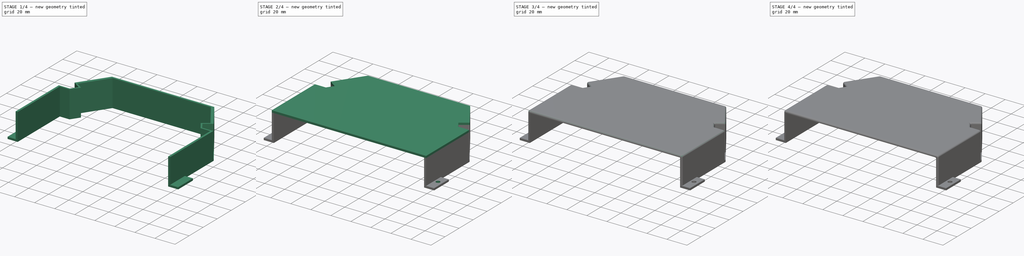
[diagram: build sequence overview — one tinted view per stage of 4, left to right]
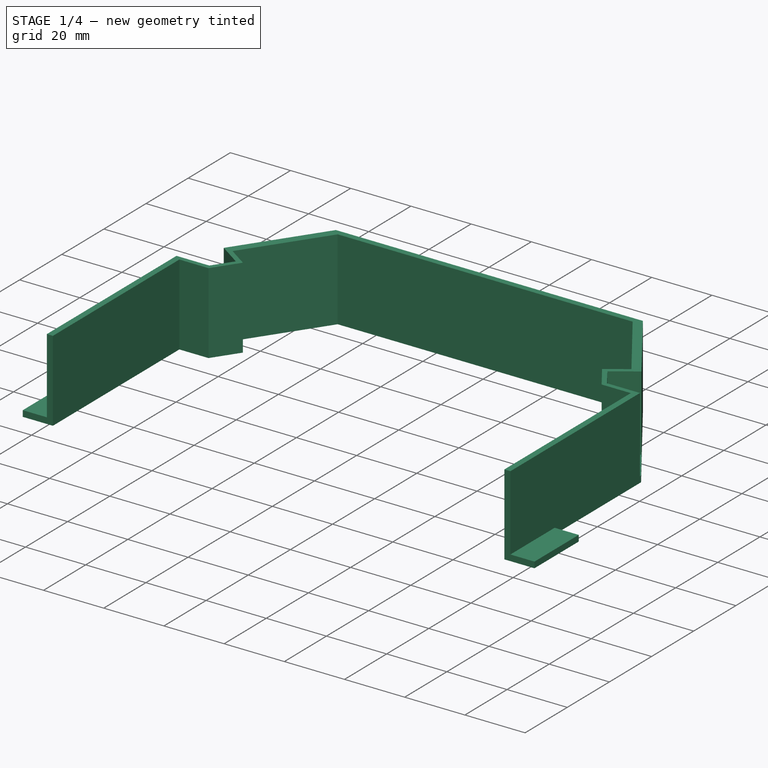
[diagram: stage 1 of 4 — iso view after this stage's code; geometry added in this stage tinted green]
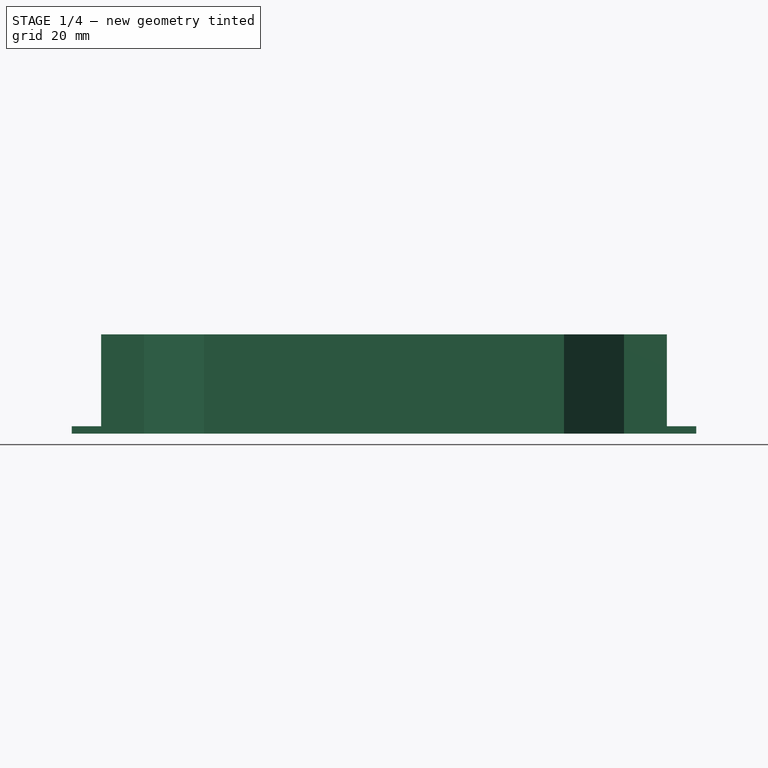
[diagram: stage 1 of 4 — front view after this stage's code; geometry added in this stage tinted green]
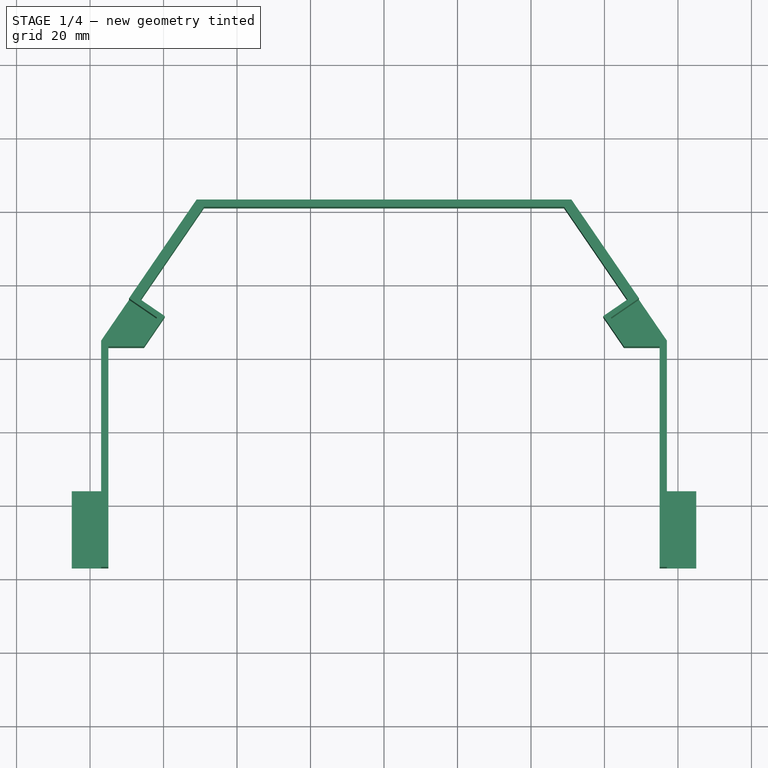
[diagram: stage 1 of 4 — top view after this stage's code; geometry added in this stage tinted green]
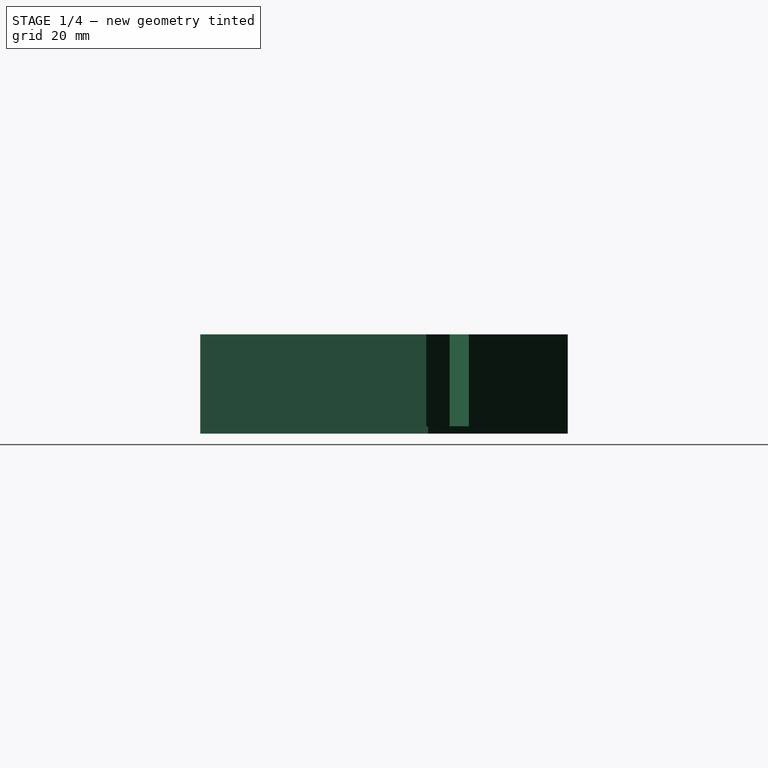
[diagram: stage 1 of 4 — right view after this stage's code; geometry added in this stage tinted green]
FCSTD DOCUMENT  (FreeCAD 0.20R28870 (Git))
Label: splash_protection_hb_driver
License: All rights reserved
LicenseURL: http://en.wikipedia.org/wiki/All_rights_reserved
objects: Sketcher::SketchObject×5, PartDesign::Fillet×4, PartDesign::Pad×3, Image::ImagePlane×1, PartDesign::Hole×1, PartDesign::Pocket×1, PartDesign::Body×1
note: 24 computed .brp shape members not serialized (recipe doc carries the construction recipe); baked Part::Feature solids carry a one-line shape summary decoded from their .brp

FEATURE [Image::ImagePlane] ImagePlane
  XSize = 275.437
  YSize = 136.14
FEATURE [Sketcher::SketchObject] Sketch
  FullyConstrained = true
  MapMode = 5
  Support = -> [XY_Plane]
  expr: Constraints[10] = 94 + 4
  expr: Constraints[31] = 146 + 4
  sketch-geometry (25):
    g0: LineSegment StartX=-85 StartY=-57 StartZ=0 EndX=-85 EndY=-36 EndZ=0
    g1: LineSegment StartX=-85 StartY=-36 StartZ=0 EndX=-77 EndY=-36 EndZ=0
    g2: LineSegment StartX=-66.2623 StartY=15.7705 StartZ=0 EndX=-49 EndY=41 EndZ=0
    g3: LineSegment StartX=-49 StartY=41 StartZ=0 EndX=49 EndY=41 EndZ=0
    g4: LineSegment StartX=49 StartY=41 StartZ=0 EndX=66.2623 EndY=15.7705 EndZ=0
    g5: LineSegment StartX=75 StartY=3 StartZ=0 EndX=75 EndY=-57 EndZ=0
    g6: LineSegment StartX=85 StartY=-36 StartZ=0 EndX=85 EndY=-57 EndZ=0
    g7: LineSegment StartX=85 StartY=-57 StartZ=0 EndX=-85 EndY=-57 EndZ=0
    g8: LineSegment StartX=85 StartY=-57 StartZ=0 EndX=75 EndY=-57 EndZ=0
    g9: LineSegment StartX=85 StartY=-36 StartZ=0 EndX=77 EndY=-36 EndZ=0
    g10: LineSegment StartX=77 StartY=-36 StartZ=0 EndX=77 EndY=5 EndZ=0
    g11: LineSegment StartX=77 StartY=5 StartZ=0 EndX=51 EndY=43 EndZ=0
    g12: LineSegment StartX=51 StartY=43 StartZ=0 EndX=-51 EndY=43 EndZ=0
    g13: LineSegment StartX=-51 StartY=43 StartZ=0 EndX=-77 EndY=5 EndZ=0
    g14: LineSegment StartX=-77 StartY=5 StartZ=0 EndX=-77 EndY=-36 EndZ=0
    g15: LineSegment StartX=-75 StartY=3 StartZ=0 EndX=-75 EndY=-57 EndZ=0
    g16: LineSegment StartX=-75 StartY=-57 StartZ=0 EndX=-85 EndY=-57 EndZ=0
    g17: LineSegment StartX=-77 StartY=-36 StartZ=0 EndX=77 EndY=-36 EndZ=0
    g18: LineSegment StartX=-75 StartY=3 StartZ=0 EndX=-65.3066 EndY=3 EndZ=0
    g19: LineSegment StartX=-65.3066 StartY=3 StartZ=0 EndX=-59.6598 EndY=11.2531 EndZ=0
    g20: LineSegment StartX=-59.6598 StartY=11.2531 StartZ=0 EndX=-66.2623 EndY=15.7705 EndZ=0
    g21: LineSegment StartX=66.2623 StartY=15.7705 StartZ=0 EndX=59.6598 EndY=11.2531 EndZ=0
    g22: LineSegment StartX=59.6598 StartY=11.2531 StartZ=0 EndX=65.3066 EndY=3 EndZ=0
    g23: LineSegment StartX=65.3066 StartY=3 StartZ=0 EndX=75 EndY=3 EndZ=0
    g24: LineSegment StartX=-65.3066 StartY=3 StartZ=0 EndX=65.3066 EndY=3 EndZ=0
  constraints (69):
    c: Vertical(g0)
    c: Coincident(g1,g0)
    c: Horizontal(g1)
    c: Coincident(g3,g2)
    c: Coincident(g4,g3)
    c: Vertical(g5)
    c: Vertical(g6)
    c: Coincident(g7,g6)
    c: Symmetric(g3,g2,g-2)
    c: Symmetric(g6,g0,g-2)
    c: Distance(g3,g7) = 98
    c: Coincident(g7,g0)
    c: Coincident(g8,g6)
    c: PointOnObject(g8,g7)
    c: Coincident(g5,g8)
    c: Coincident(g9,g6)
    c: Horizontal(g9)
    c: Coincident(g10,g9)
    c: Vertical(g10)
    c: Coincident(g11,g10)
    c: Coincident(g12,g11)
    c: Horizontal(g12)
    c: Coincident(g13,g12)
    c: Coincident(g14,g13)
    c: Vertical(g14)
    c: Coincident(g14,g1)
    c: Vertical(g15)
    c: Coincident(g16,g15)
    c: Coincident(g16,g0)
    c: Distance(g-1,g7) = 57
    c: DistanceY(g2,g12) = 2
    c: Distance(g5,g15) = 150
    c: Symmetric(g5,g15,g-2)
    c: Distance(g16) = 10
    c: Equal(g10,g14)
    c: Equal(g11,g13)
    c: Parallel(g11,g4)
    c: Distance(g6) = 21
    c: Coincident(g17,g1)
    c: Coincident(g17,g9)
    c: Horizontal(g17)
    c: Parallel(g13,g2)
    c: DistanceX(g3,g11) = 2
    c: Distance(g1,g15) = 2
    c: Distance(g9,g5) = 2
    c: Coincident(g18,g15)
    c: Coincident(g19,g18)
    c: Coincident(g20,g19)
    c: Coincident(g20,g2)
    c: Perpendicular(g2,g20)
    c: Distance(g20) = 8
    c: Parallel(g19,g13)
    c: Coincident(g21,g4)
    c: Coincident(g22,g21)
    c: Coincident(g23,g22)
    c: Horizontal(g23)
    c: Coincident(g5,g23)
    c: Parallel(g22,g11)
    c: Perpendicular(g4,g21)
    c: Distance(g21) = 8
    c: Distance(g22,g7) = 60
    c: Horizontal(g18)
    c: Coincident(g24,g18)
    c: Coincident(g24,g22)
    c: Horizontal(g24)
    c: DistanceY(g5,g10) = 2
    c: Distance(g22) = 10
    c: Distance(g19) = 10
    c: Distance(g12) = 102
FEATURE [PartDesign::Pad] Pad
  Direction = (0,0,1)
  Length = 2
  Length2 = 10
  Profile = -> Sketch
  ReferenceAxis = -> Sketch [N_Axis]
  Type = 0
FEATURE [Sketcher::SketchObject] Sketch001
  ExternalGeometry = -> [Pad]
  FullyConstrained = true
  MapMode = 5
  Placement = pos=(0,0,2) rot=(0,0,1;0rad)
  Support = -> [Pad]
  sketch-geometry (24):
    g0: LineSegment StartX=-77 StartY=4.5 StartZ=0 EndX=-77 EndY=-57 EndZ=0
    g1: LineSegment StartX=-77 StartY=-57 StartZ=0 EndX=-75 EndY=-57 EndZ=0
    g2: LineSegment StartX=-75 StartY=-57 StartZ=0 EndX=-75 EndY=3 EndZ=0
    g3: LineSegment StartX=-49 StartY=41 StartZ=0 EndX=49 EndY=41 EndZ=0
    g4: LineSegment StartX=75 StartY=3 StartZ=0 EndX=75 EndY=-57 EndZ=0
    g5: LineSegment StartX=75 StartY=-57 StartZ=0 EndX=77 EndY=-57 EndZ=0
    g6: LineSegment StartX=77 StartY=-57 StartZ=0 EndX=77 EndY=4.5 EndZ=0
    g7: LineSegment StartX=51 StartY=43 StartZ=0 EndX=-51 EndY=43 EndZ=0
    g8: LineSegment StartX=75 StartY=3 StartZ=0 EndX=65.3066 EndY=3 EndZ=0
    g9: LineSegment StartX=65.3066 StartY=3 StartZ=0 EndX=59.6598 EndY=11.2531 EndZ=0
    g10: LineSegment StartX=59.6598 StartY=11.2531 StartZ=0 EndX=66.2623 EndY=15.7705 EndZ=0
    g11: LineSegment StartX=66.2623 StartY=15.7705 StartZ=0 EndX=49 EndY=41 EndZ=0
    g12: LineSegment StartX=-66.2623 StartY=15.7705 StartZ=0 EndX=-49 EndY=41 EndZ=0
    g13: LineSegment StartX=-66.2623 StartY=15.7705 StartZ=0 EndX=-59.6598 EndY=11.2531 EndZ=0
    g14: LineSegment StartX=-59.6598 StartY=11.2531 StartZ=0 EndX=-65.3066 EndY=3 EndZ=0
    g15: LineSegment StartX=-65.3066 StartY=3 StartZ=0 EndX=-75 EndY=3 EndZ=0
    g16: LineSegment StartX=-77 StartY=4.5 StartZ=0 EndX=-66.0978 EndY=4.5 EndZ=0
    g17: LineSegment StartX=-66.0978 StartY=4.5 StartZ=0 EndX=-61.7448 EndY=10.8621 EndZ=0
    g18: LineSegment StartX=-61.7448 StartY=10.8621 StartZ=0 EndX=-69.4036 EndY=16.1024 EndZ=0
    g19: LineSegment StartX=77 StartY=4.5 StartZ=0 EndX=66.0978 EndY=4.5 EndZ=0
    g20: LineSegment StartX=66.0978 StartY=4.5 StartZ=0 EndX=61.7448 EndY=10.8621 EndZ=0
    g21: LineSegment StartX=61.7448 StartY=10.8621 StartZ=0 EndX=69.4036 EndY=16.1024 EndZ=0
    g22: LineSegment StartX=69.4036 StartY=16.1024 StartZ=0 EndX=51 EndY=43 EndZ=0
    g23: LineSegment StartX=-69.4036 StartY=16.1024 StartZ=0 EndX=-51 EndY=43 EndZ=0
  constraints (58):
    c: Vertical(g0)
    c: Coincident(g1,g0)
    c: Coincident(g1,g-3)
    c: Horizontal(g1)
    c: Coincident(g2,g1)
    c: Coincident(g2,g-3)
    c: Coincident(g3,g-9)
    c: Coincident(g4,g-4)
    c: Coincident(g5,g4)
    c: Horizontal(g5)
    c: Coincident(g6,g5)
    c: Vertical(g6)
    c: Coincident(g4,g-16)
    c: Coincident(g8,g4)
    c: Coincident(g8,g-16)
    c: Coincident(g9,g8)
    c: Coincident(g9,g-17)
    c: Coincident(g10,g-17)
    c: Coincident(g11,g10)
    c: Coincident(g11,g3)
    c: Coincident(g10,g9)
    c: PointOnObject(g-12,g0)
    c: Coincident(g12,g3)
    c: Coincident(g3,g-10)
    c: Coincident(g-14,g12)
    c: Coincident(g13,g12)
    c: Coincident(g13,g-14)
    c: Coincident(g14,g13)
    c: Coincident(g14,g-15)
    c: Coincident(g15,g14)
    c: Coincident(g15,g2)
    c: Coincident(g16,g0)
    c: Coincident(g17,g16)
    c: Coincident(g18,g17)
    c: Parallel(g16,g15)
    c: Parallel(g17,g14)
    c: Parallel(g18,g13)
    c: PointOnObject(g6,g-5)
    c: Coincident(g19,g6)
    c: Horizontal(g19)
    c: Coincident(g20,g19)
    c: PointOnObject(g21,g-6)
    c: Coincident(g22,g21)
    c: Coincident(g22,g7)
    c: Parallel(g21,g10)
    c: Parallel(g20,g9)
    c: PointOnObject(g18,g-11)
    c: Coincident(g7,g-11)
    c: Coincident(g7,g-7)
    c: Coincident(g23,g18)
    c: Coincident(g23,g7)
    c: Distance(g19,g8) = 1.5
    c: Distance(g20,g9) = 1.5
    c: Distance(g16,g14) = 1.5
    c: Distance(g2,g16) = 1.5
    c: Coincident(g21,g20)
    c: Distance(g20,g10) = 1.5
    c: Distance(g17,g13) = 1.5
FEATURE [PartDesign::Pad] Pad001
  BaseFeature = -> Pad
  Direction = (0,0,1)
  Length = 25
  Length2 = 10
  Profile = -> Sketch001
  ReferenceAxis = -> Sketch001 [N_Axis]
  Type = 0
  expr: Length = 34 - 9
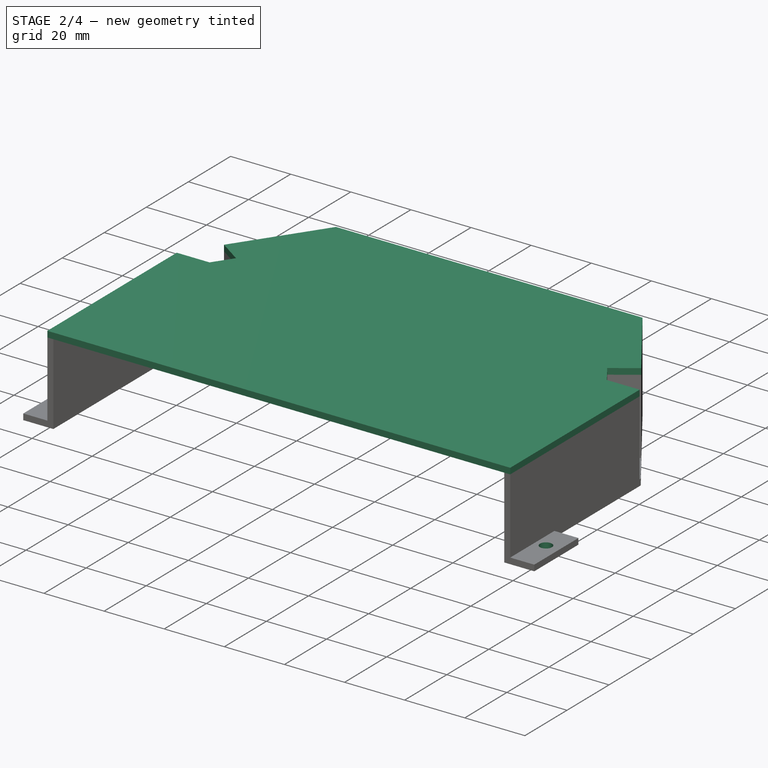
[diagram: stage 2 of 4 — iso view after this stage's code; geometry added in this stage tinted green]
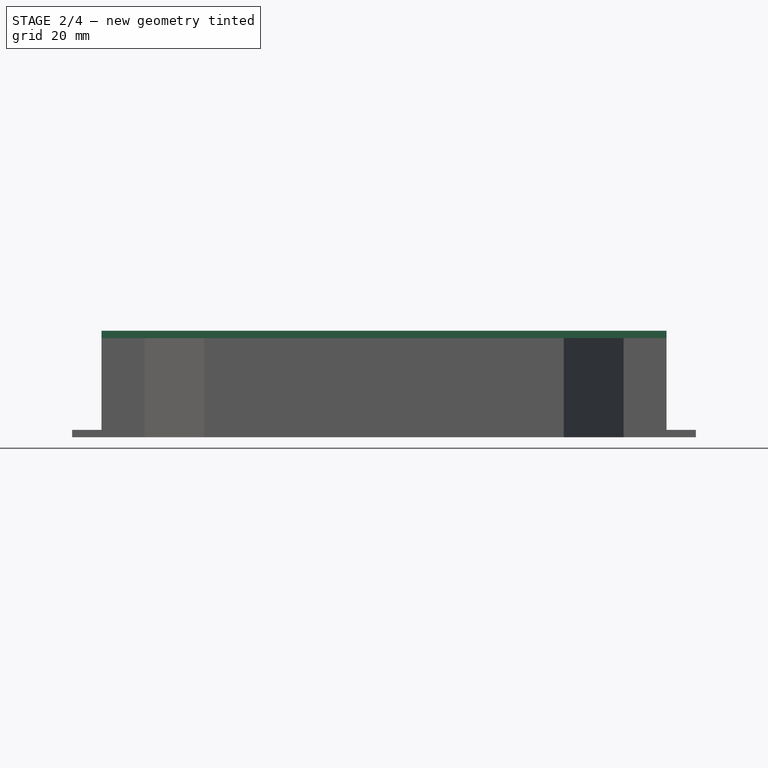
[diagram: stage 2 of 4 — front view after this stage's code; geometry added in this stage tinted green]
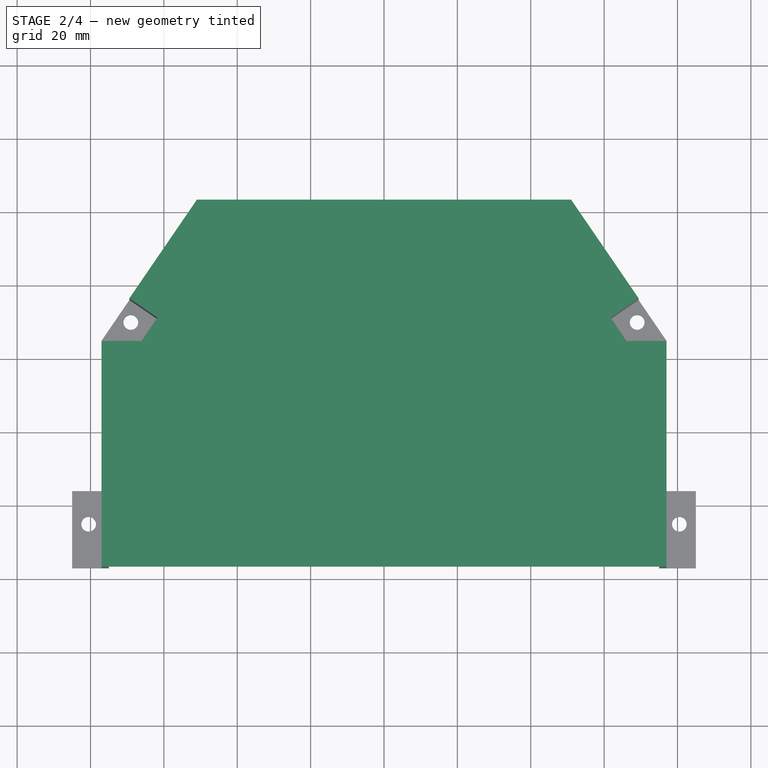
[diagram: stage 2 of 4 — top view after this stage's code; geometry added in this stage tinted green]
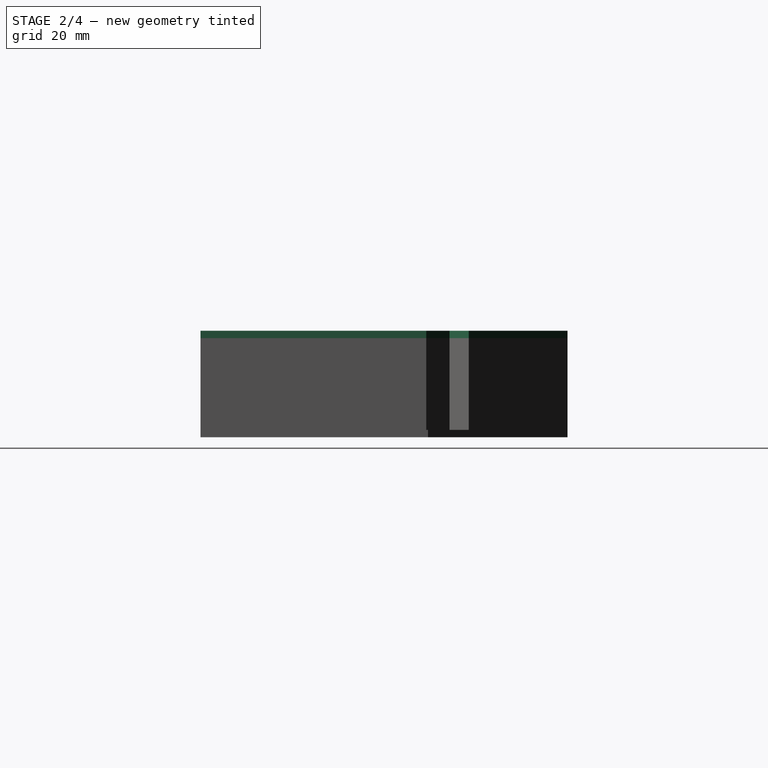
[diagram: stage 2 of 4 — right view after this stage's code; geometry added in this stage tinted green]
FEATURE [Sketcher::SketchObject] Sketch002
  ExternalGeometry = -> [Pad001]
  FullyConstrained = true
  MapMode = 5
  Placement = pos=(0,0,27) rot=(0,0,1;0rad)
  Support = -> [Pad001]
  sketch-geometry (12):
    g0: LineSegment StartX=-77 StartY=-57 StartZ=0 EndX=77 EndY=-57 EndZ=0
    g1: LineSegment StartX=77 StartY=-57 StartZ=0 EndX=77 EndY=4.5 EndZ=0
    g2: LineSegment StartX=77 StartY=4.5 StartZ=0 EndX=66.0978 EndY=4.5 EndZ=0
    g3: LineSegment StartX=66.0978 StartY=4.5 StartZ=0 EndX=61.7448 EndY=10.8621 EndZ=0
    g4: LineSegment StartX=61.7448 StartY=10.8621 StartZ=0 EndX=69.4036 EndY=16.1024 EndZ=0
    g5: LineSegment StartX=69.4036 StartY=16.1024 StartZ=0 EndX=51 EndY=43 EndZ=0
    g6: LineSegment StartX=51 StartY=43 StartZ=0 EndX=-51 EndY=43 EndZ=0
    g7: LineSegment StartX=-51 StartY=43 StartZ=0 EndX=-69.4036 EndY=16.1024 EndZ=0
    g8: LineSegment StartX=-69.4036 StartY=16.1024 StartZ=0 EndX=-61.7448 EndY=10.8621 EndZ=0
    g9: LineSegment StartX=-61.7448 StartY=10.8621 StartZ=0 EndX=-66.0978 EndY=4.5 EndZ=0
    g10: LineSegment StartX=-66.0978 StartY=4.5 StartZ=0 EndX=-77 EndY=4.5 EndZ=0
    g11: LineSegment StartX=-77 StartY=4.5 StartZ=0 EndX=-77 EndY=-57 EndZ=0
  constraints (24):
    c: Coincident(g0,g-7)
    c: Coincident(g0,g-8)
    c: Coincident(g1,g0)
    c: Coincident(g1,g-9)
    c: Coincident(g2,g1)
    c: Coincident(g2,g-10)
    c: Coincident(g3,g2)
    c: Coincident(g3,g-11)
    c: Coincident(g4,g3)
    c: Coincident(g4,g-12)
    c: Coincident(g5,g4)
    c: Coincident(g5,g-12)
    c: Coincident(g6,g5)
    c: Coincident(g6,g-3)
    c: Coincident(g7,g6)
    c: Coincident(g7,g-4)
    c: Coincident(g8,g7)
    c: Coincident(g8,g-5)
    c: Coincident(g9,g8)
    c: Coincident(g9,g-6)
    c: Coincident(g10,g9)
    c: Coincident(g10,g-7)
    c: Coincident(g11,g10)
    c: Coincident(g11,g0)
FEATURE [PartDesign::Pad] Pad002
  BaseFeature = -> Pad001
  Direction = (0,0,1)
  Length = 2
  Length2 = 10
  Profile = -> Sketch002
  ReferenceAxis = -> Sketch002 [N_Axis]
  Type = 0
FEATURE [Sketcher::SketchObject] Sketch003
  ExternalGeometry = -> [Pad002]
  FullyConstrained = true
  MapMode = 5
  Placement = pos=(0,0,2) rot=(0,0,1;0rad)
  Support = -> [Pad002]
  sketch-geometry (7):
    g0: LineSegment StartX=-77 StartY=-57 StartZ=0 EndX=77 EndY=-57 EndZ=0
    g1: Circle CenterX=69 CenterY=10 CenterZ=0 NormalX=0 NormalY=0 NormalZ=1 AngleXU=0 Radius=2
    g2: Circle CenterX=-69 CenterY=10 CenterZ=0 NormalX=0 NormalY=0 NormalZ=1 AngleXU=0 Radius=2
    g3: Circle CenterX=-80.5 CenterY=-45 CenterZ=0 NormalX=0 NormalY=0 NormalZ=1 AngleXU=0 Radius=2
    g4: Circle CenterX=80.5 CenterY=-45 CenterZ=0 NormalX=0 NormalY=0 NormalZ=1 AngleXU=0 Radius=2
    g5: LineSegment StartX=-80.5 StartY=-45 StartZ=0 EndX=80.5 EndY=-45 EndZ=0
    g6: LineSegment StartX=-69 StartY=10 StartZ=0 EndX=69 EndY=10 EndZ=0
  constraints (18):
    c: Coincident(g0,g-3)
    c: Coincident(g0,g-4)
    c: Equal(g4,g1)
    c: Equal(g1,g2)
    c: Equal(g2,g3)
    c: Diameter(g2) = 4
    c: Coincident(g5,g3)
    c: Coincident(g5,g4)
    c: Horizontal(g5)
    c: DistanceY(g-3,g3) = 12
    c: DistanceX(g3,g-5) = 5.5
    c: DistanceX(g-6,g4) = 5.5
    c: Coincident(g6,g2)
    c: Coincident(g6,g1)
    c: Horizontal(g6)
    c: Distance(g2,g0) = 67
    c: Distance(g2,g-5) = 6
    c: Distance(g1,g-6) = 6
FEATURE [PartDesign::Hole] Hole
  BaseFeature = -> Pad002
  CustomThreadClearance = 0
  Depth = 25
  DepthType = 0
  Diameter = 4
  DrillForDepth = false
  DrillPoint = 0
  DrillPointAngle = 118
  HoleCutCountersinkAngle = 90
  HoleCutCustomValues = false
  HoleCutDepth = 0
  HoleCutDiameter = 6.1
  HoleCutType = 0
  ModelThread = false
  Profile = -> Sketch003
  Tapered = false
  TaperedAngle = 90
  ThreadClass = 0
  ThreadDepth = 25
  ThreadDepthType = 0
  ThreadDirection = 0
  ThreadFit = 0
  ThreadSize = 0
  ThreadType = 0
  Threaded = false
  UseCustomThreadClearance = false
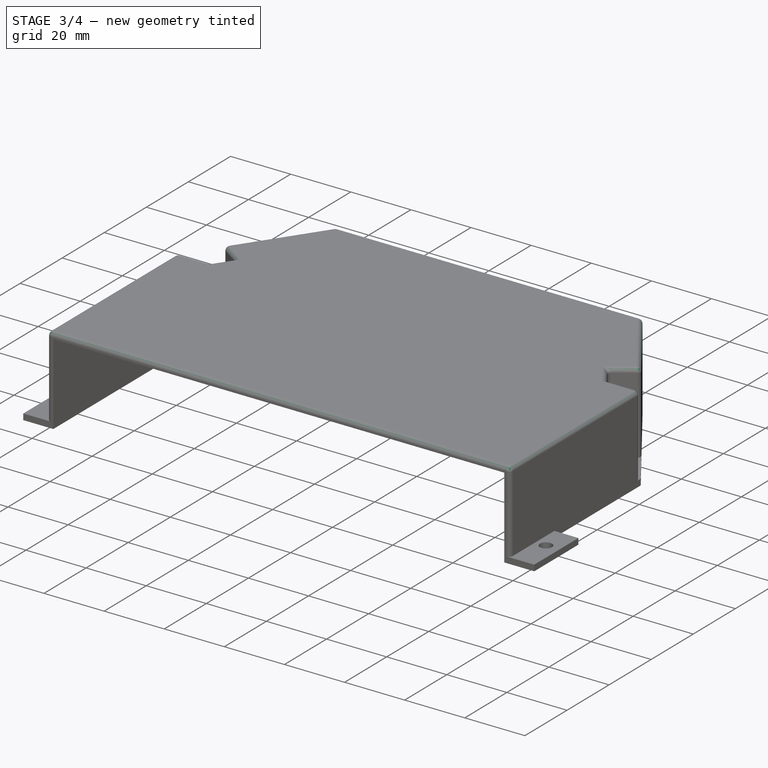
[diagram: stage 3 of 4 — iso view after this stage's code; geometry added in this stage tinted green]
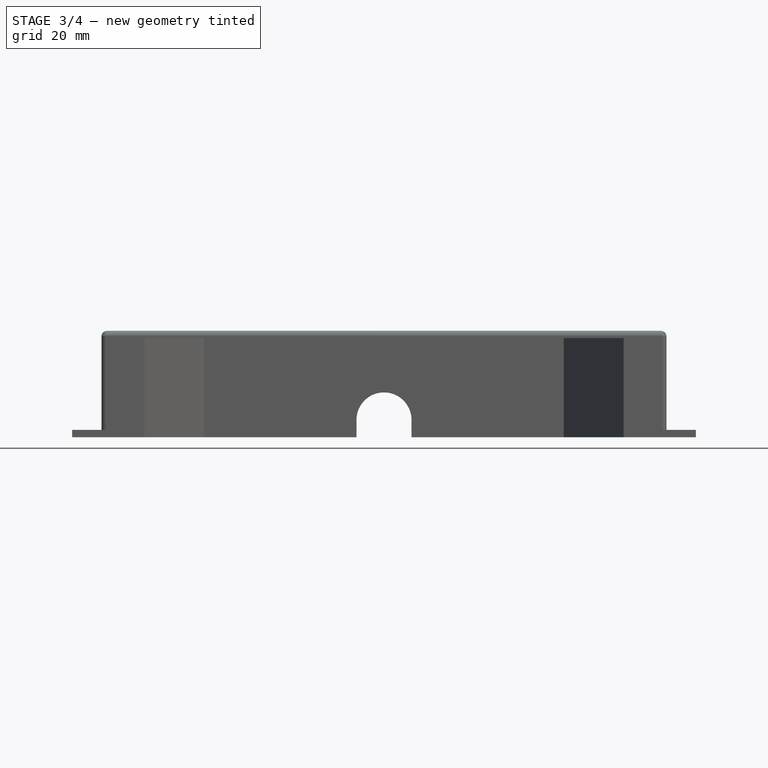
[diagram: stage 3 of 4 — front view after this stage's code; geometry added in this stage tinted green]
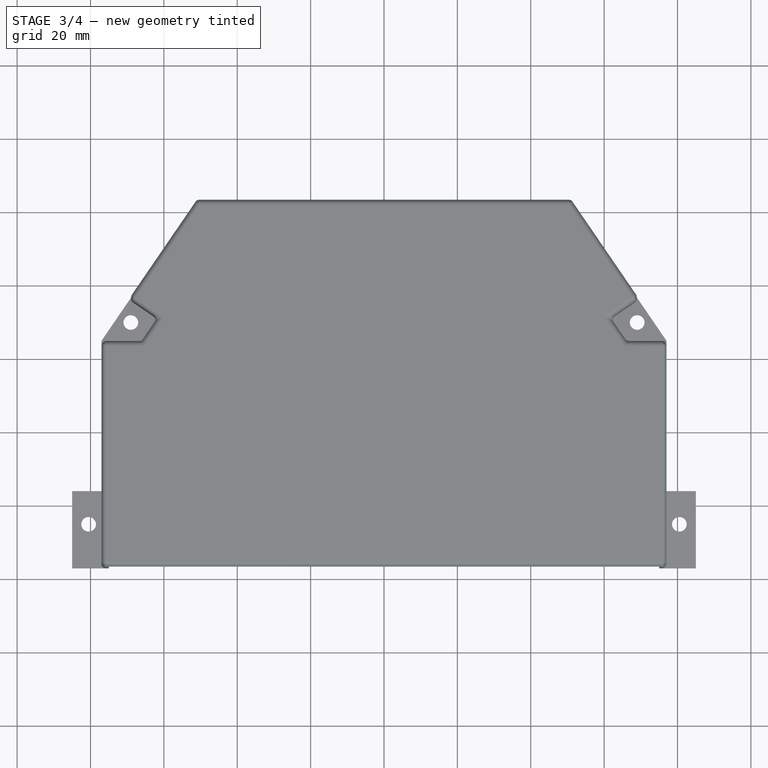
[diagram: stage 3 of 4 — top view after this stage's code; geometry added in this stage tinted green]
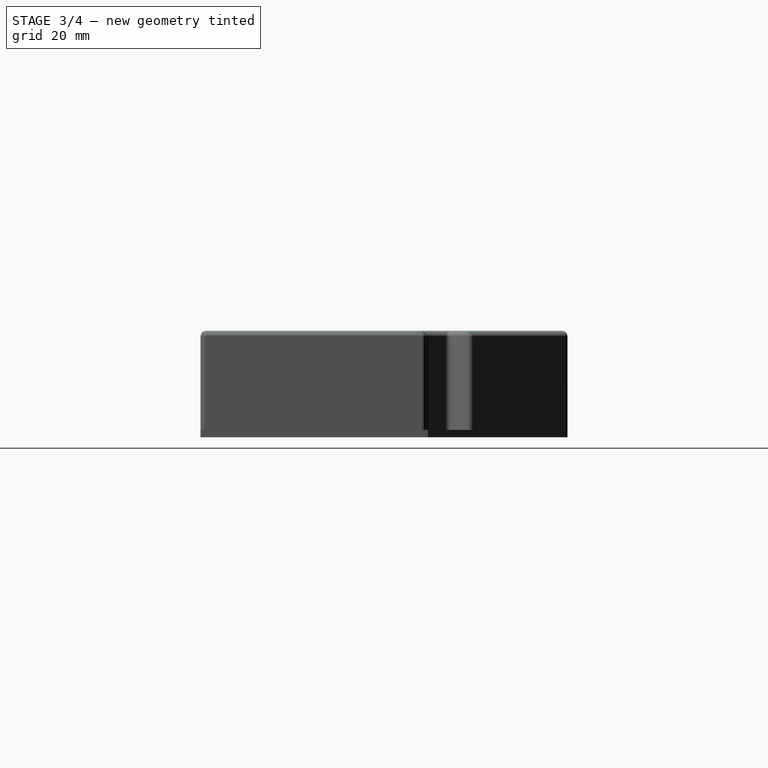
[diagram: stage 3 of 4 — right view after this stage's code; geometry added in this stage tinted green]
FEATURE [Sketcher::SketchObject] Sketch004
  FullyConstrained = false
  MapMode = 5
  Placement = pos=(0,43,0) rot=(0,0.707107,0.707107;3.14159rad)
  Support = -> [Hole]
  sketch-geometry (4):
    g0: ArcOfCircle CenterX=3e-16 CenterY=-5e-16 CenterZ=0 NormalX=0 NormalY=0 NormalZ=1 AngleXU=0 Radius=7.5 StartAngle=3.14159 EndAngle=6.28319
    g1: ArcOfCircle CenterX=0 CenterY=4.70078 CenterZ=0 NormalX=0 NormalY=0 NormalZ=1 AngleXU=0 Radius=7.5 StartAngle=0 EndAngle=3.14159
    g2: LineSegment StartX=7.5 StartY=-5e-16 StartZ=0 EndX=7.5 EndY=4.70078 EndZ=0
    g3: LineSegment StartX=-7.5 StartY=4.70078 StartZ=0 EndX=-7.5 EndY=0 EndZ=0
  constraints (8):
    c: Tangent(g0,g2) = -1.5708
    c: Tangent(g2,g1) = -1.5708
    c: Tangent(g1,g3) = -1.5708
    c: Tangent(g3,g0) = -1.5708
    c: Equal(g0,g1)
    c: PointOnObject(g1,g-2)
    c: Vertical(g2)
    c: Radius(g0) = 7.5
FEATURE [PartDesign::Pocket] Pocket
  BaseFeature = -> Hole
  Direction = (0,-1,2e-16)
  Length = 5
  Length2 = 5
  Profile = -> Sketch004
  ReferenceAxis = -> Sketch004 [N_Axis]
  Type = 0
FEATURE [PartDesign::Fillet] Fillet
  Base = -> Pocket [Edge117,Edge116,Edge115,Edge114,Edge113,Edge110,Edge75,Edge107,Edge121,Edge120,Edge119,Edge118]
  BaseFeature = -> Pocket
  Radius = 1.5
  SupportTransform = false
  UseAllEdges = false
FEATURE [PartDesign::Fillet] Fillet001
  Base = -> Fillet [Edge204,Edge203,Edge206,Edge38,Edge177,Edge95,Edge13,Edge207,Edge194,Edge132,Edge58,Edge31]
  BaseFeature = -> Fillet
  Radius = 1.25
  SupportTransform = false
  UseAllEdges = false
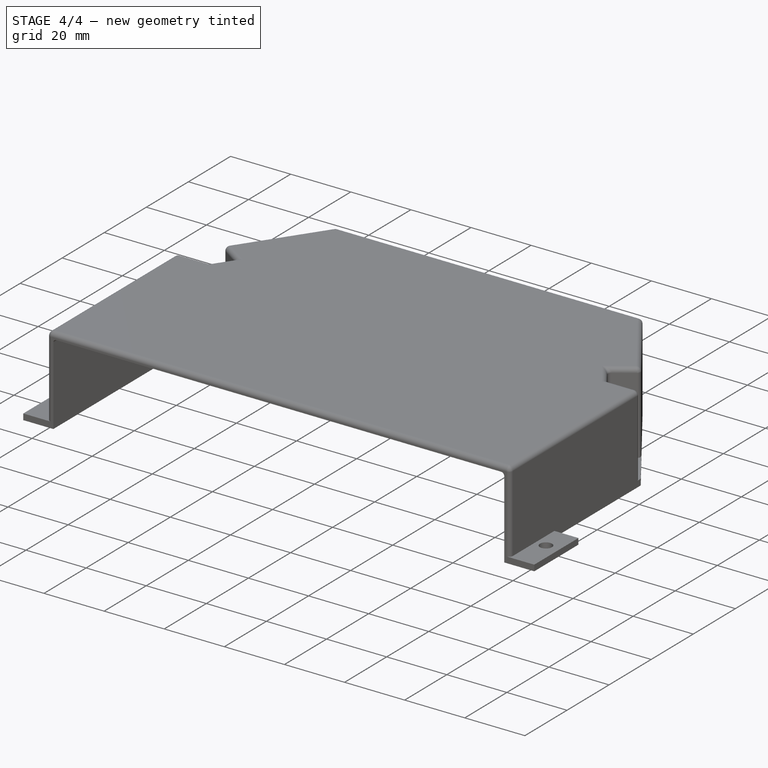
[diagram: stage 4 of 4 — iso view after this stage's code; geometry added in this stage tinted green]
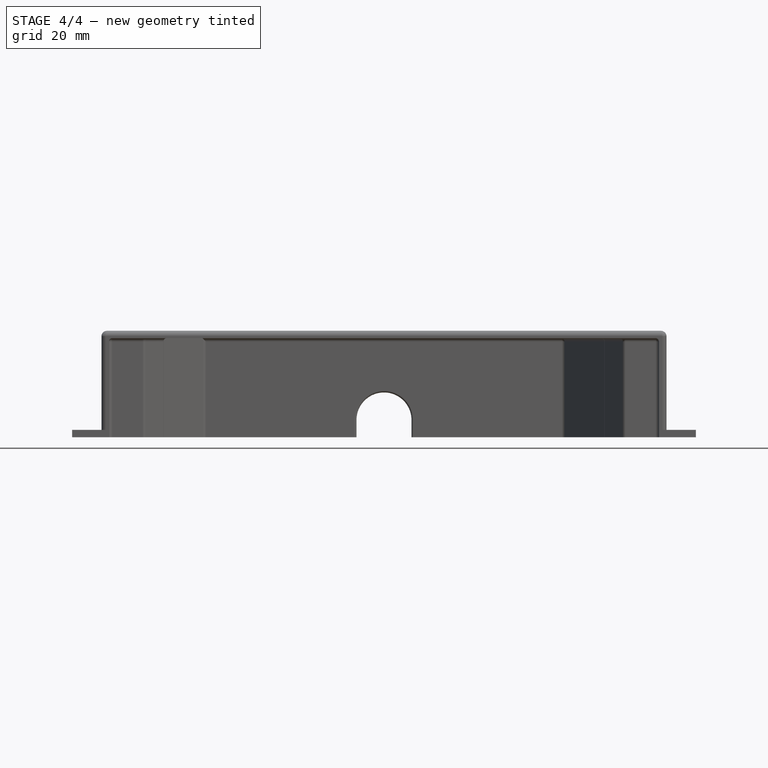
[diagram: stage 4 of 4 — front view after this stage's code; geometry added in this stage tinted green]
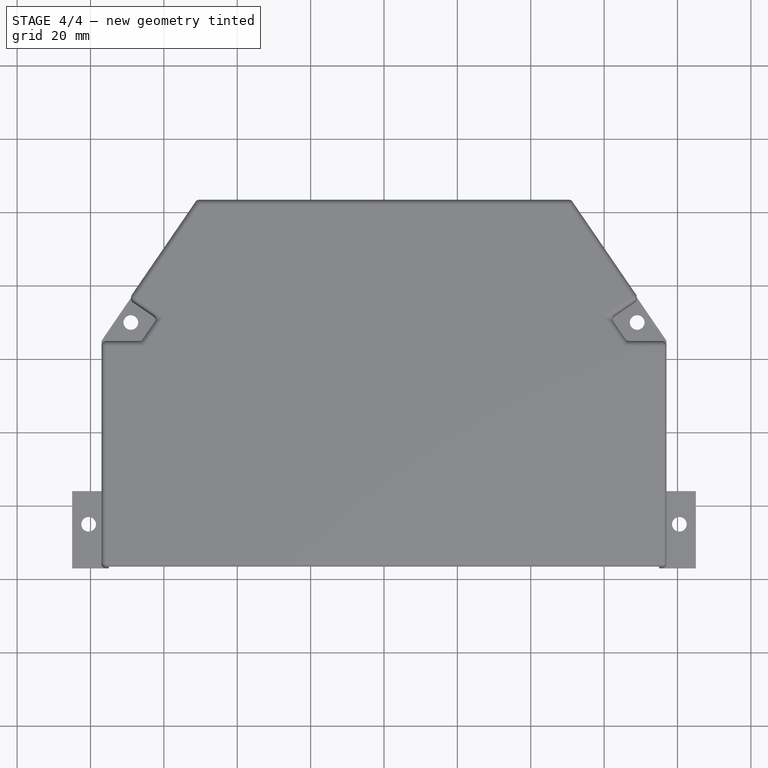
[diagram: stage 4 of 4 — top view after this stage's code; geometry added in this stage tinted green]
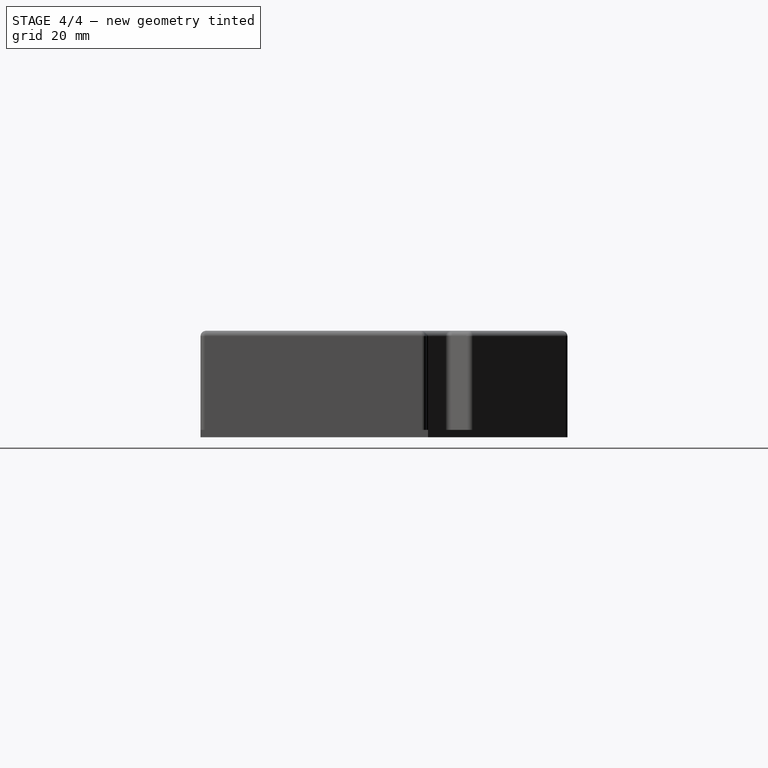
[diagram: stage 4 of 4 — right view after this stage's code; geometry added in this stage tinted green]
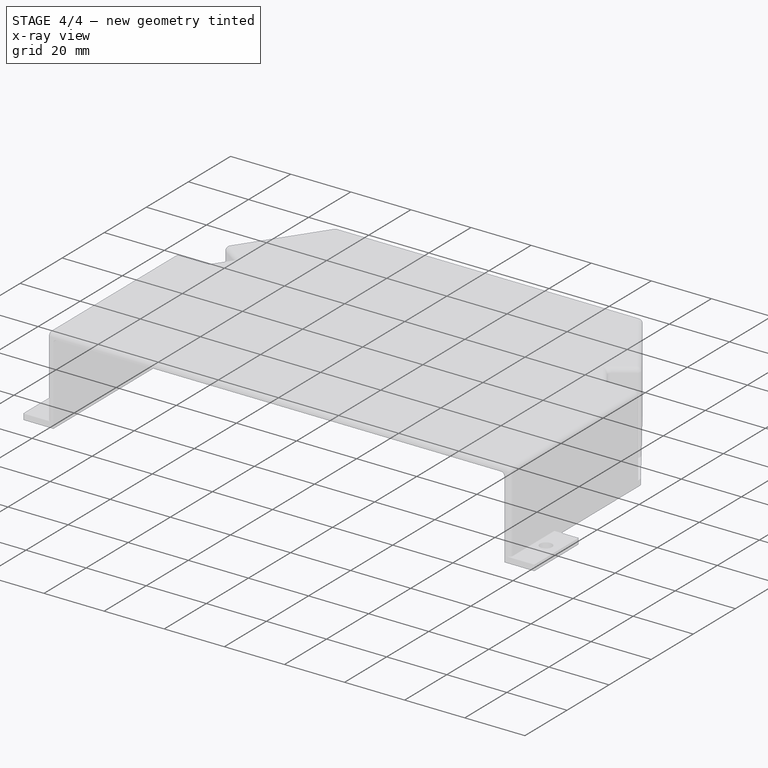
[diagram: stage 4 of 4 — x-ray composite at the iso view; earlier geometry ghosted, this stage's added geometry solid]
FEATURE [PartDesign::Fillet] Fillet002
  Base = -> Fillet001 [Edge186,Edge90]
  BaseFeature = -> Fillet001
  Radius = 0.5
  SupportTransform = false
  UseAllEdges = false
FEATURE [PartDesign::Fillet] Fillet003
  Base = -> Fillet002 [Edge28,Edge27,Edge73,Edge71,Edge69,Edge32,Edge25,Edge26,Edge24,Edge7,Edge5,Edge3,Edge15,Edge59,Edge66,Edge22,Edge64,Edge20,Edge21]
  BaseFeature = -> Fillet002
  Radius = 1
  SupportTransform = false
  UseAllEdges = false
FEATURE [PartDesign::Body] Body  label="Abdeckung"
  Group = -> [Sketch,Pad,Sketch001,Pad001,Sketch002,Pad002,Sketch003,Hole,Sketch004,Pocket,Fillet,Fillet001,Fillet002,Fillet003]
  Origin = -> Origin
  Tip = -> Fillet003
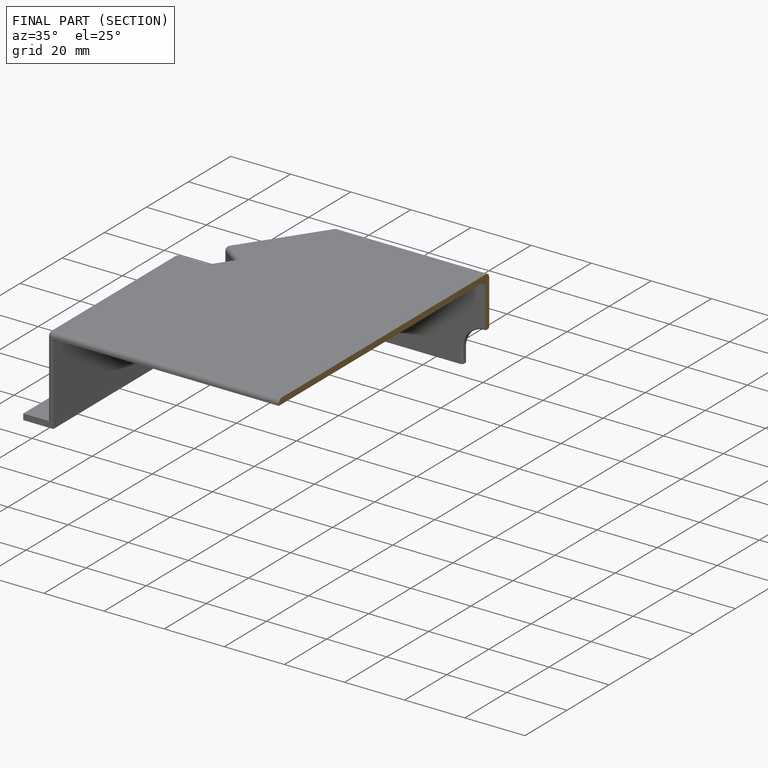
[diagram: finished part — half-section view (interior)]
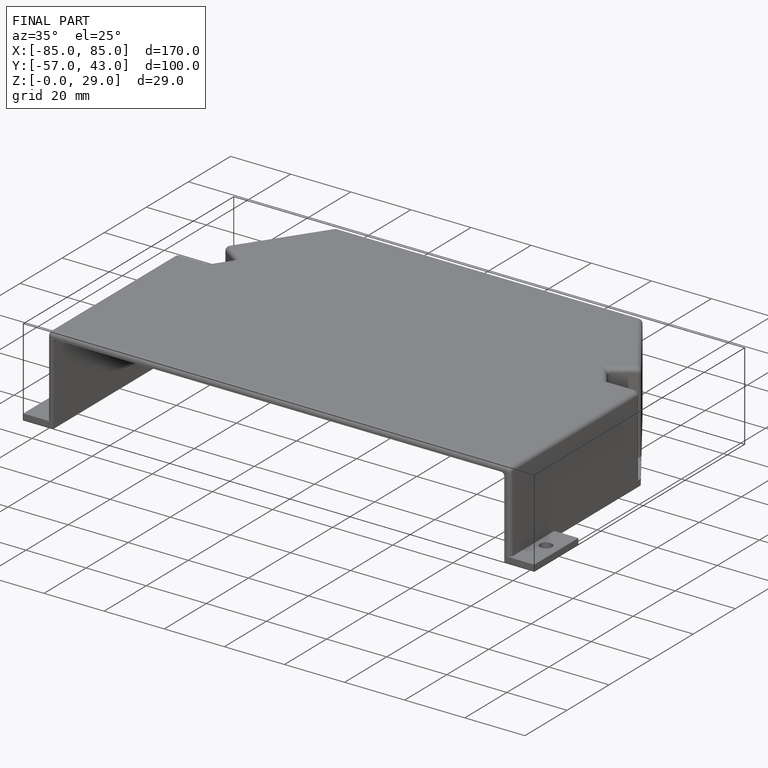
[diagram: finished part — iso view with bounding-box wireframe]
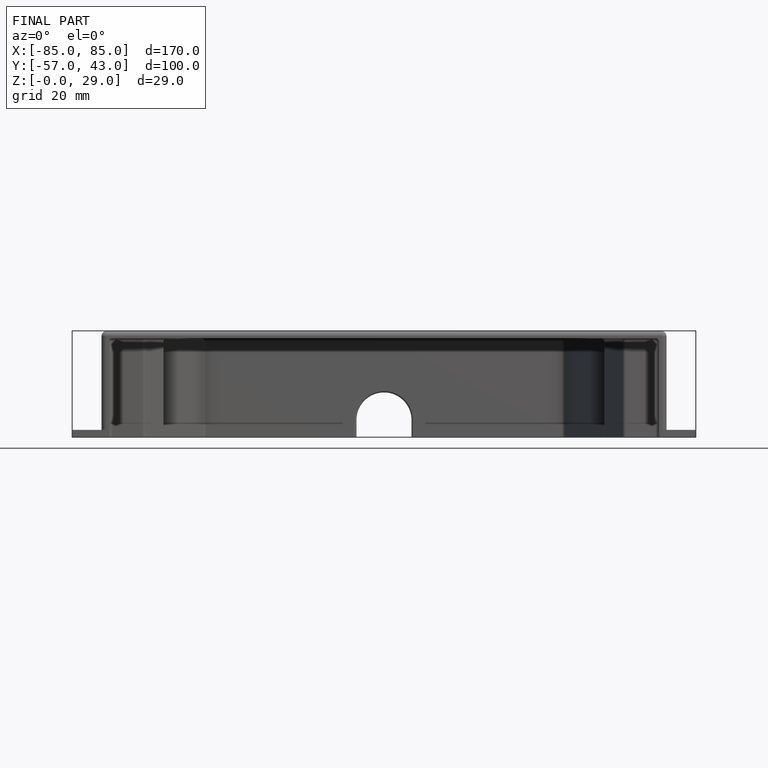
[diagram: finished part — front view with bounding-box wireframe]
